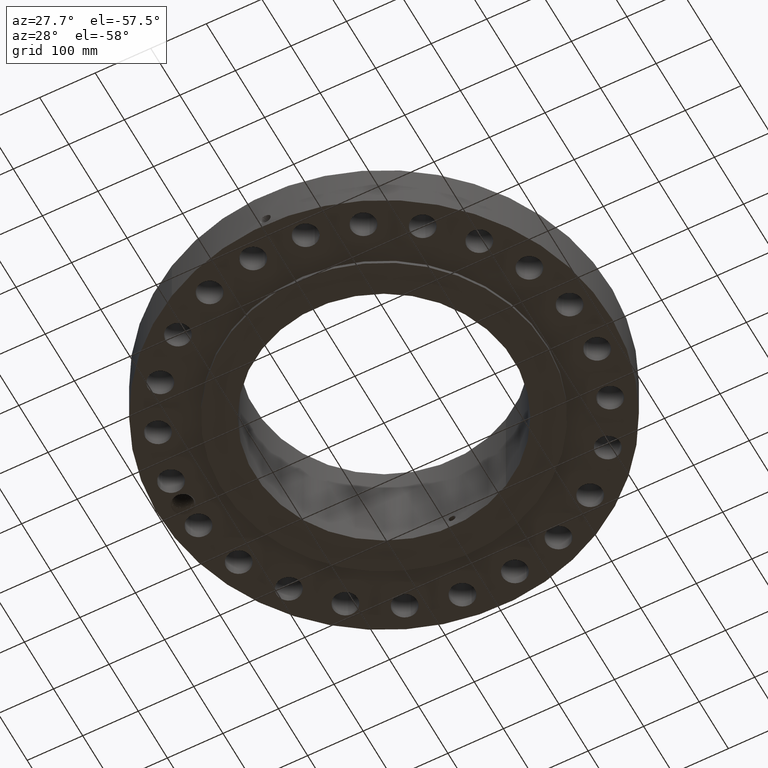
[diagram: clean part render]
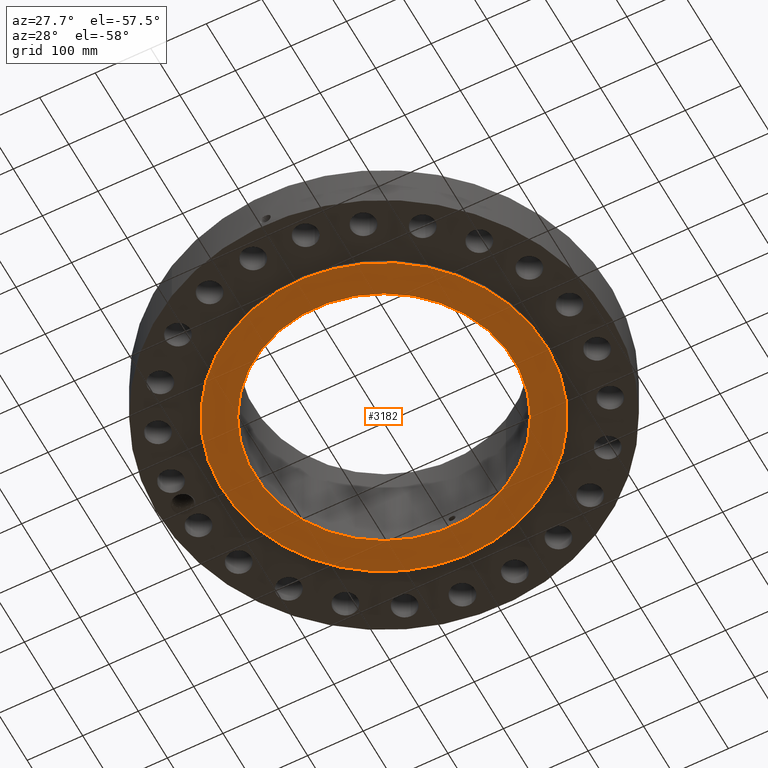
[diagram: same view with one face highlighted and labeled with its STEP entity id]
A machine part, auxiliary view. The second image highlights one B-rep face of the part: STEP entity #3182.
In plain terms, the highlighted planar face has unit normal (0, 0, -1).
Its self-contained STEP definition (entity closure, byte-faithful):
#1730=AXIS2_PLACEMENT_3D('Circle Axis2P3D',#1728,#1729,$) ;
#1756=AXIS2_PLACEMENT_3D('Circle Axis2P3D',#1754,#1755,$) ;
#3158=AXIS2_PLACEMENT_3D('Plane Axis2P3D',#3155,#3156,#3157) ;
#3166=AXIS2_PLACEMENT_3D('Circle Axis2P3D',#3164,#3165,$) ;
#3175=AXIS2_PLACEMENT_3D('Circle Axis2P3D',#3173,#3174,$) ;
#1728=CARTESIAN_POINT('Axis2P3D Location',(0.,0.,1.1189649382E-015)) ;
#1732=CARTESIAN_POINT('Vertex',(5.51339369397,10.0921994618,1.1189649382E-015)) ;
#1734=CARTESIAN_POINT('Vertex',(-5.51339369397,-10.0921994618,1.1189649382E-015)) ;
#1754=CARTESIAN_POINT('Axis2P3D Location',(0.,0.,1.1189649382E-015)) ;
#3155=CARTESIAN_POINT('Axis2P3D Location',(0.,9.18800000004,0.)) ;
#3164=CARTESIAN_POINT('Axis2P3D Location',(0.,0.,0.)) ;
#3168=CARTESIAN_POINT('Vertex',(4.40496184871,8.06322857868,-6.48999664159E-014)) ;
#3170=CARTESIAN_POINT('Vertex',(-4.40496184871,-8.06322857868,-6.48999664159E-014)) ;
#3173=CARTESIAN_POINT('Axis2P3D Location',(0.,0.,0.)) ;
#1729=DIRECTION('Axis2P3D Direction',(0.,0.,-0.0393700787402)) ;
#1755=DIRECTION('Axis2P3D Direction',(0.,0.,-0.0393700787402)) ;
#3156=DIRECTION('Axis2P3D Direction',(0.,0.,-0.0393700787402)) ;
#3157=DIRECTION('Axis2P3D XDirection',(0.0393700787402,0.,0.)) ;
#3165=DIRECTION('Axis2P3D Direction',(0.,0.,-0.0393700787402)) ;
#3174=DIRECTION('Axis2P3D Direction',(0.,0.,-0.0393700787402)) ;
#3161=ORIENTED_EDGE('',*,*,#1758,.T.) ;
#3162=ORIENTED_EDGE('',*,*,#1736,.T.) ;
#3179=ORIENTED_EDGE('',*,*,#3172,.F.) ;
#3180=ORIENTED_EDGE('',*,*,#3177,.F.) ;
#3181=FACE_BOUND('',#3178,.T.) ;
#3182=ADVANCED_FACE('PartBody',(#3163,#3181),#3159,.T.) ;
#1731=CIRCLE('generated circle',#1730,11.5) ;
#1757=CIRCLE('generated circle',#1756,11.5) ;
#3167=CIRCLE('generated circle',#3166,9.18800000004) ;
#3176=CIRCLE('generated circle',#3175,9.18800000004) ;
#1736=EDGE_CURVE('',#1733,#1735,#1731,.T.) ;
#1758=EDGE_CURVE('',#1735,#1733,#1757,.T.) ;
#3172=EDGE_CURVE('',#3169,#3171,#3167,.T.) ;
#3177=EDGE_CURVE('',#3171,#3169,#3176,.T.) ;
#3160=EDGE_LOOP('',(#3161,#3162)) ;
#3178=EDGE_LOOP('',(#3179,#3180)) ;
#3163=FACE_OUTER_BOUND('',#3160,.T.) ;
#3159=PLANE('',#3158) ;
#1733=VERTEX_POINT('',#1732) ;
#1735=VERTEX_POINT('',#1734) ;
#3169=VERTEX_POINT('',#3168) ;
#3171=VERTEX_POINT('',#3170) ;